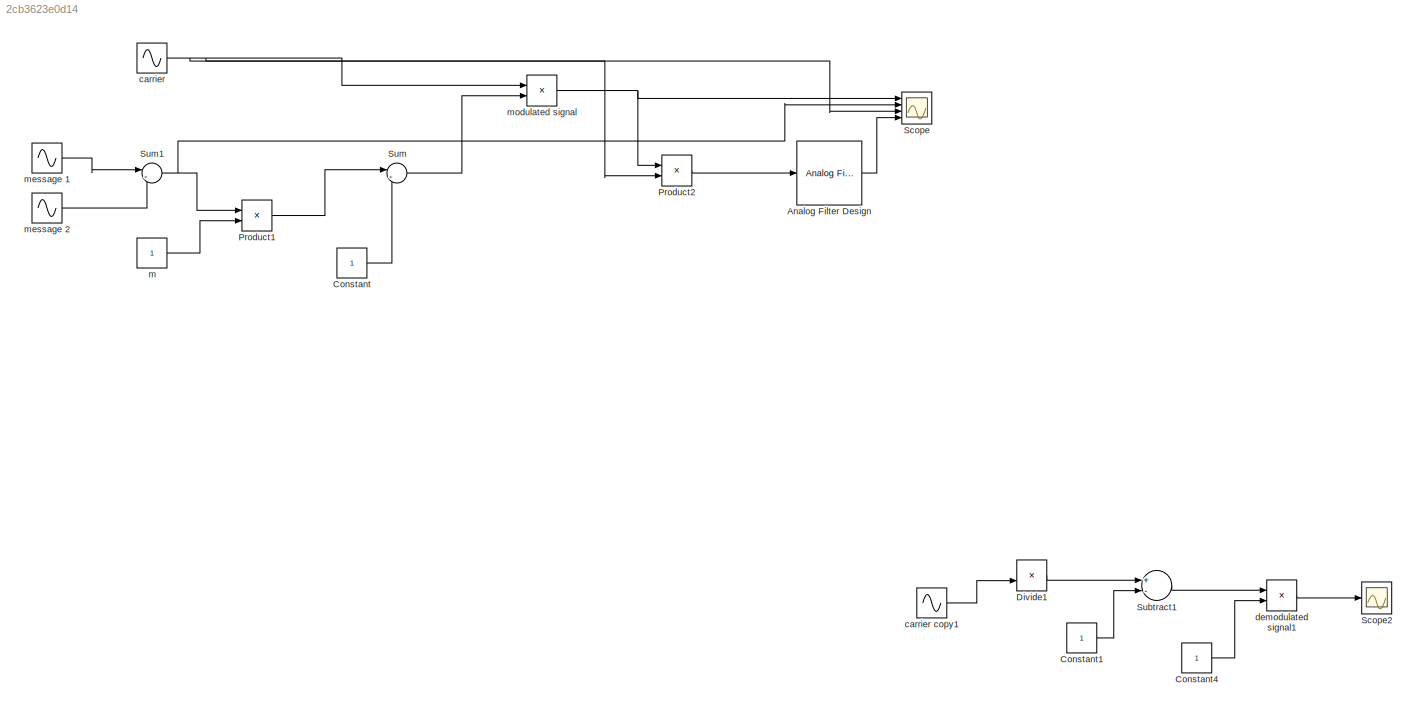
MODEL slx_2cb3623e0d14
KIND model
CONFIG AbsTol = auto
CONFIG EnableMultiTasking = off
CONFIG FixedStep = auto
CONFIG MaxStep = auto
CONFIG MinStep = auto
CONFIG RelTol = 1e-3
CONFIG SampleTimeConstraint = Unconstrained
CONFIG Solver = VariableStepAuto
CONFIG SolverName = VariableStepAuto
CONFIG StartTime = 0.0
CONFIG StopTime = 1
BLOCK [Reference] Analog Filter Design  REF=dsparch4/Analog
Filter Design
  Ports = [1, 1]
  SourceBlock = dsparch4/Analog\nFilter Design
  SourceProductBaseCode = DS
  SourceProductName = DSP System Toolbox
  SourceType = Analog Filter Design
BLOCK [Constant] Constant
BLOCK [Constant] Constant1
BLOCK [Constant] Constant4
BLOCK [Product] Divide1
  InputSameDT = off
  Inputs = */
  OutDataTypeStr = Inherit: Inherit via internal rule
  Ports = [2, 1]
  RndMeth = Floor
  SaturateOnIntegerOverflow = off
BLOCK [Product] Product1
  InputSameDT = off
  OutDataTypeStr = Inherit: Inherit via internal rule
  Ports = [2, 1]
  RndMeth = Floor
  SaturateOnIntegerOverflow = off
BLOCK [Product] Product2
  InputSameDT = off
  OutDataTypeStr = Inherit: Inherit via internal rule
  Ports = [2, 1]
  RndMeth = Floor
  SaturateOnIntegerOverflow = off
BLOCK [Scope] Scope
  Floating = off
  NumInputPorts = 4
  Ports = [4]
  ScopeSpecificationString = Simulink.scopes.TimeScopeBlockCfg('CurrentConfiguration', extmgr.ConfigurationSet(extmgr.Configuration('Core','General UI',true),extmgr.Configuration('Core','Source UI',true),extmgr.Configuration('Sources','WiredSimulink',true),extmgr.Configuration('Visuals','Time Domain',true,'SerializedDisplays',{struct('MinYLimReal','-2.94493','MaxYLimReal','2.76106','YLabelReal','','MinYLimMag','0.00000','MaxY...<+3395ch>
BLOCK [Scope] Scope2
  Floating = off
  NumInputPorts = 1
  Ports = [1]
  ScopeSpecificationString = Simulink.scopes.TimeScopeBlockCfg('CurrentConfiguration', extmgr.ConfigurationSet(extmgr.Configuration('Core','General UI',true),extmgr.Configuration('Core','Source UI',true),extmgr.Configuration('Sources','WiredSimulink',true,'DataLoggingVariableName','ScopeData1'),extmgr.Configuration('Visuals','Time Domain',true,'SerializedDisplays',{struct('MinYLimReal','-2.37229','MaxYLimReal','2.38122','YLab...<+2708ch>
BLOCK [Sum] Subtract1
  InputSameDT = off
  Inputs = +-
  OutDataTypeStr = Inherit: Inherit via internal rule
  Ports = [2, 1]
  SaturateOnIntegerOverflow = off
BLOCK [Sum] Sum
  IconShape = round
  InputSameDT = off
  Inputs = |++
  OutDataTypeStr = Inherit: Inherit via internal rule
  Ports = [2, 1]
  SaturateOnIntegerOverflow = off
BLOCK [Sum] Sum1
  IconShape = round
  InputSameDT = off
  Inputs = |++
  OutDataTypeStr = Inherit: Inherit via internal rule
  Ports = [2, 1]
  SaturateOnIntegerOverflow = off
BLOCK [Sin] carrier
  Frequency = 2*pi*50
  Phase = pi/2
  Ports = [0, 1]
  SampleTime = 0
BLOCK [Sin] carrier copy1
  Frequency = 2*pi*50
  Phase = pi/2
  Ports = [0, 1]
  SampleTime = 0
BLOCK [Product] demodulated signal1
  InputSameDT = off
  Inputs = */
  OutDataTypeStr = Inherit: Inherit via internal rule
  Ports = [2, 1]
  RndMeth = Floor
  SaturateOnIntegerOverflow = off
BLOCK [Constant] m
BLOCK [Sin] message 1
  Frequency = 2*pi*4
  Ports = [0, 1]
  SampleTime = 0
BLOCK [Sin] message 2
  Frequency = 2*pi*6
  Phase = pi/2
  Ports = [0, 1]
  SampleTime = 0
BLOCK [Product] modulated signal
  InputSameDT = off
  OutDataTypeStr = Inherit: Inherit via internal rule
  Ports = [2, 1]
  RndMeth = Floor
  SaturateOnIntegerOverflow = off
LINE Analog Filter Design:1 -> Scope:4
LINE Constant1:1 -> Subtract1:2
LINE Constant4:1 -> demodulated signal1:2
LINE Constant:1 -> Sum:2
LINE Divide1:1 -> Subtract1:1
LINE Product1:1 -> Sum:1
LINE Product2:1 -> Analog Filter Design:1
LINE Subtract1:1 -> demodulated signal1:1
NET Sum1:1 -> Product1:1, Scope:2
LINE Sum:1 -> modulated signal:2
LINE carrier copy1:1 -> Divide1:2
NET carrier:1 -> Product2:2, Scope:3, modulated signal:1
LINE demodulated signal1:1 -> Scope2:1
LINE m:1 -> Product1:2
LINE message 1:1 -> Sum1:1
LINE message 2:1 -> Sum1:2
NET modulated signal:1 -> Product2:1, Scope:1
note: NET lines group one-source signal fan-out (src -> all destinations, sorted); 1:1 wires keep LINE
